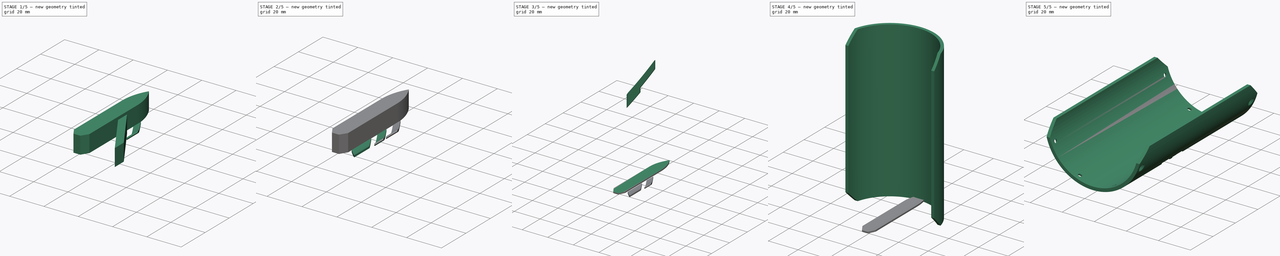
[diagram: build sequence overview — one tinted view per stage of 5, left to right]
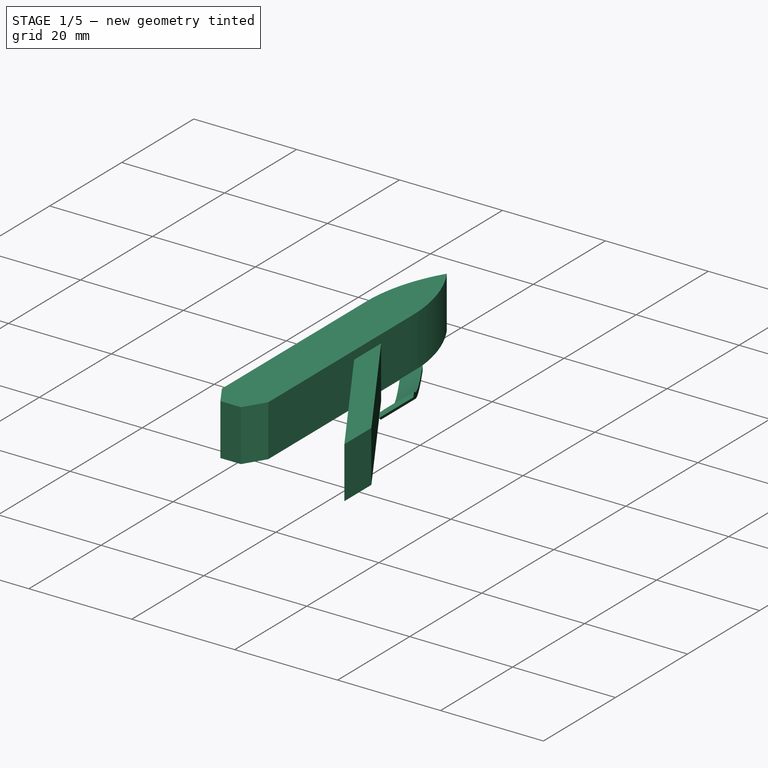
[diagram: stage 1 of 5 — iso view after this stage's code; geometry added in this stage tinted green]
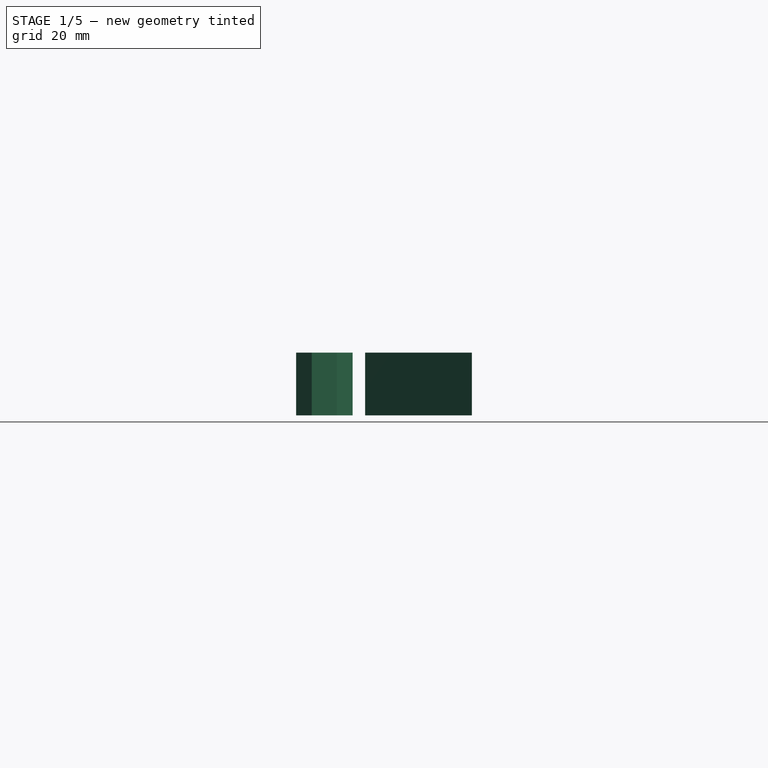
[diagram: stage 1 of 5 — front view after this stage's code; geometry added in this stage tinted green]
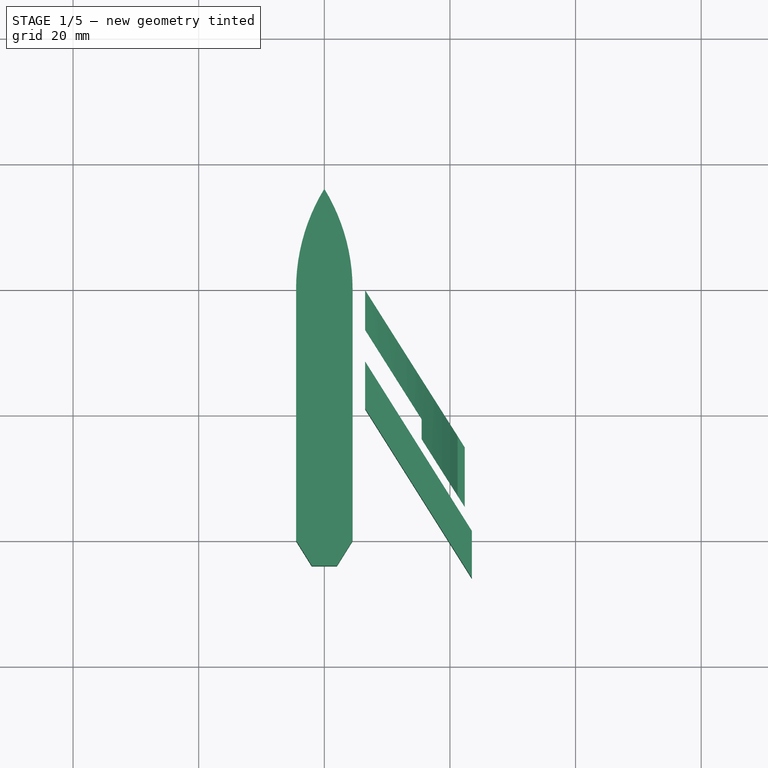
[diagram: stage 1 of 5 — top view after this stage's code; geometry added in this stage tinted green]
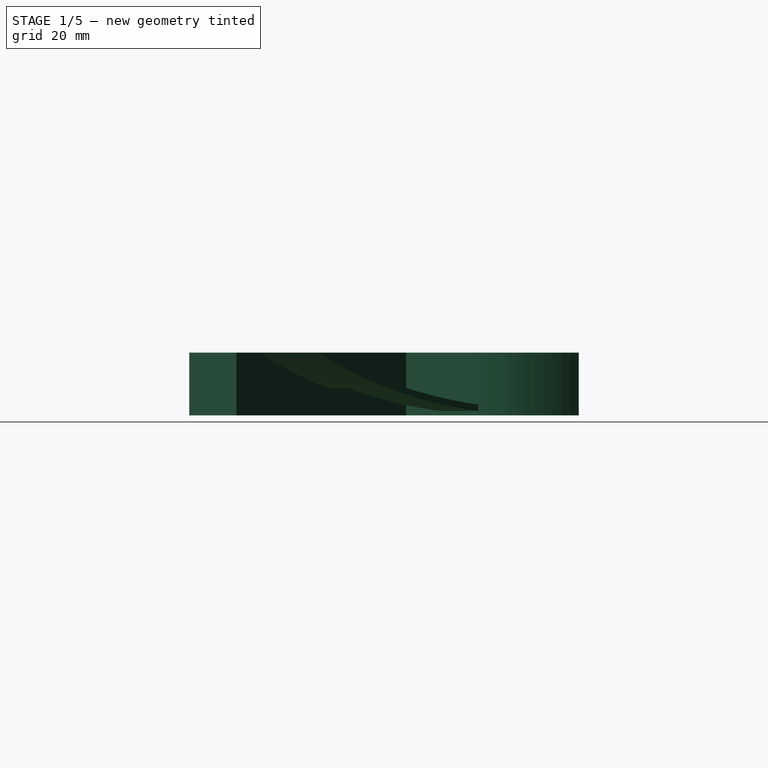
[diagram: stage 1 of 5 — right view after this stage's code; geometry added in this stage tinted green]
FCSTD DOCUMENT  (FreeCAD 1.0R39319 (Git))
Label: fuselage_w_logo
License: All rights reserved
objects: Sketcher::SketchObject×18, PartDesign::Pocket×11, PartDesign::Body×8, PartDesign::Plane×7, PartDesign::Pad×5, PartDesign::FeatureBase×3, Part::Mirroring×3, PartDesign::PolarPattern×1, PartDesign::Chamfer×1, PartDesign::Boolean×1
note: 115 computed .brp shape members not serialized (recipe doc carries the construction recipe); baked Part::Feature solids carry a one-line shape summary decoded from their .brp

FEATURE [Sketcher::SketchObject] Sketch005
  ArcFitTolerance = 1e-06
  AttachmentSupport = -> [XY_Plane001]
  FullyConstrained = true
  MakeInternals = false
  MapMode = 5
  sketch-geometry (11):
    g0: LineSegment StartX=-4.5 StartY=20 StartZ=0 EndX=-4.5 EndY=-20 EndZ=0
    g1: LineSegment StartX=4.5 StartY=-20 StartZ=0 EndX=4.5 EndY=20 EndZ=0
    g2: LineSegment [constr] StartX=-4.5 StartY=20 StartZ=0 EndX=4.5 EndY=-20 EndZ=0
    g3: LineSegment [constr] StartX=4.5 StartY=20 StartZ=0 EndX=-4.5 EndY=-20 EndZ=0
    g4: GeomPoint [constr] X=0 Y=0 Z=0
    g5: GeomPoint [constr] X=0 Y=36 Z=0
    g6: ArcOfCircle CenterX=26.1944 CenterY=20 CenterZ=0 NormalX=0 NormalY=0 NormalZ=1 AngleXU=0 Radius=30.6944 StartAngle=2.59326 EndAngle=3.14159
    g7: ArcOfCircle CenterX=-26.1944 CenterY=20 CenterZ=0 NormalX=0 NormalY=0 NormalZ=1 AngleXU=0 Radius=30.6944 StartAngle=0 EndAngle=0.548335
    g8: LineSegment StartX=-4.5 StartY=-20 StartZ=0 EndX=-2 EndY=-24 EndZ=0
    g9: LineSegment StartX=-2 StartY=-24 StartZ=0 EndX=2 EndY=-24 EndZ=0
    g10: LineSegment StartX=2 StartY=-24 StartZ=0 EndX=4.5 EndY=-20 EndZ=0
  constraints (24):
    c: Vertical(g0)
    c: DistanceX(g0,g1) = 9
    c: DistanceY(g1,g1) = 40
    c: Coincident(g2,g0)
    c: Coincident(g3,g1)
    c: Coincident(g3,g0)
    c: PointOnObject(g4,g2)
    c: Coincident(g4,g-1)
    c: PointOnObject(g5,g-2)
    c: DistanceY(g1,g5) = 16
    c: Coincident(g6,g5)
    c: Coincident(g7,g5)
    c: Tangent(g6,g0) = -1.5708
    c: Tangent(g7,g1) = -1.5708
    c: Symmetric(g1,g0,g-2)
    c: Coincident(g0,g8)
    c: Coincident(g8,g9)
    c: Coincident(g9,g10)
    c: DistanceY(g8,g0) = 4
    c: Symmetric(g8,g9,g-2)
    c: DistanceX(g8,g9) = 4
    c: Coincident(g10,g1)
    c: Symmetric(g1,g0,g-2)
    c: Coincident(g2,g1)
FEATURE [PartDesign::Pad] Pad001
  Direction = (0,0,1)
  Length = 10
  Length2 = 10
  Profile = -> Sketch005
  ReferenceAxis = -> Sketch005 [N_Axis]
  Refine = true
  Suppressed = false
  Type = 0
FEATURE [PartDesign::Plane] DatumPlane004
  AttachmentSupport = -> [Pad002]
  Length = 60
  MapMode = 7
  Placement = pos=(6.5,-4,0) rot=(1,0,0;1.5708rad)
  ResizeMode = 0
  Width = 60
FEATURE [Sketcher::SketchObject] Sketch007
  ArcFitTolerance = 1e-06
  AttachmentSupport = -> [XY_Plane003]
  FullyConstrained = true
  MakeInternals = false
  MapMode = 5
  sketch-geometry (4):
    g0: LineSegment StartX=6.5 StartY=1 StartZ=0 EndX=6.5 EndY=8.5 EndZ=0
    g1: LineSegment StartX=6.5 StartY=8.5 StartZ=0 EndX=23.5 EndY=-18.5 EndZ=0
    g2: LineSegment StartX=23.5 StartY=-18.5 StartZ=0 EndX=23.5 EndY=-26 EndZ=0
    g3: LineSegment StartX=23.5 StartY=-26 StartZ=0 EndX=6.5 EndY=1 EndZ=0
  constraints (12):
    c: Coincident(g0,g1)
    c: Coincident(g1,g2)
    c: Coincident(g2,g3)
    c: Coincident(g3,g0)
    c: Vertical(g0)
    c: Vertical(g2)
    c: Parallel(g1,g3)
    c: DistanceX(g0,g1) = 17
    c: DistanceY(g2,g1) = 7.5
    c: DistanceX(g-1,g0) = 6.5
    c: DistanceY(g-1,g0) = 1
    c: DistanceY(g2,g0) = 34.5
FEATURE [PartDesign::Pad] Pad003
  Direction = (0,0,1)
  Length = 10
  Length2 = 10
  Profile = -> Sketch007
  ReferenceAxis = -> Sketch007 [N_Axis]
  Refine = true
  Suppressed = false
  Type = 0
FEATURE [PartDesign::Plane] DatumPlane005
  AttachmentSupport = -> [Pad003]
  Length = 60
  MapMode = 7
  Placement = pos=(6.5,8.5,0) rot=(1,0,0;1.5708rad)
  ResizeMode = 0
  Width = 60
FEATURE [Sketcher::SketchObject] Sketch008
  ArcFitTolerance = 1e-06
  AttachmentSupport = -> [XY_Plane004]
  FullyConstrained = true
  MakeInternals = false
  MapMode = 5
  sketch-geometry (7):
    g0: LineSegment StartX=6.5 StartY=13.665 StartZ=0 EndX=6.5 EndY=19.995 EndZ=0
    g1: LineSegment StartX=6.5 StartY=19.995 StartZ=0 EndX=23.5 EndY=-7.005 EndZ=0
    g2: LineSegment StartX=23.5 StartY=-7.005 StartZ=0 EndX=23.5 EndY=-16.5 EndZ=0
    g3: LineSegment StartX=23.5 StartY=-16.5 StartZ=0 EndX=15.5 EndY=-3.79412 EndZ=0
    g4: LineSegment StartX=15.5 StartY=-3.79412 StartZ=0 EndX=15.5 EndY=-0.629118 EndZ=0
    g5: LineSegment StartX=15.5 StartY=-0.629118 StartZ=0 EndX=6.5 EndY=13.665 EndZ=0
    g6: LineSegment [constr] StartX=23.5 StartY=-18.5 StartZ=0 EndX=6.5 EndY=8.5 EndZ=0
  constraints (22):
    c: Coincident(g0,g1)
    c: Coincident(g1,g2)
    c: Coincident(g2,g3)
    c: Coincident(g3,g4)
    c: Coincident(g4,g5)
    c: Coincident(g5,g0)
    c: Vertical(g0)
    c: Vertical(g2)
    c: Vertical(g4)
    c: DistanceY(g0,g0) = 6.33
    c: DistanceY(g2,g1) = 9.495
    c: DistanceX(g-1,g0) = 6.5
    c: DistanceX(g0,g1) = 17
    c: Parallel(g5,g1)
    c: Parallel(g3,g1)
    c: DistanceY(g6,g-1) = 18.5
    c: DistanceX(g-1,g6) = 6.5
    c: DistanceX(g-1,g6) = 23.5
    c: DistanceY(g-1,g6) = 8.5
    c: Parallel(g3,g6)
    c: DistanceY(g6,g2) = 2
    c: DistanceX(g-1,g3) = 15.5
FEATURE [PartDesign::Pad] Pad004
  Direction = (0,0,1)
  Length = 10
  Length2 = 10
  Profile = -> Sketch008
  ReferenceAxis = -> Sketch008 [N_Axis]
  Refine = true
  Suppressed = false
  Type = 0
FEATURE [Sketcher::SketchObject] Sketch016
  ArcFitTolerance = 1e-06
  AttachmentSupport = -> [DatumPlane006]
  FullyConstrained = false
  MakeInternals = false
  MapMode = 5
  Placement = pos=(6.5,19.995,0) rot=(1,0,0;1.5708rad)
  sketch-geometry (2):
    g0: Circle CenterX=-6.5 CenterY=30 CenterZ=0 NormalX=0 NormalY=0 NormalZ=1 AngleXU=0 Radius=30
    g1: Circle CenterX=-6.5 CenterY=30 CenterZ=0 NormalX=0 NormalY=0 NormalZ=1 AngleXU=0 Radius=39.2924
  constraints (4):
    c: Diameter(g0) = 60
    c: Tangent(g0,g-1)
    c: DistanceX(g0,g-1) = 6.5
    c: Coincident(g1,g0)
FEATURE [PartDesign::Pocket] Pocket009
  BaseFeature = -> Pad004
  Direction = (0,1,-2e-16)
  Length = 5
  Length2 = 5
  Profile = -> Sketch016
  ReferenceAxis = -> Sketch016 [N_Axis]
  Refine = true
  Reversed = true
  Suppressed = false
  Type = 1
FEATURE [Sketcher::SketchObject] Sketch017
  ArcFitTolerance = 1e-06
  AttachmentSupport = -> [DatumPlane006]
  FullyConstrained = true
  MakeInternals = false
  MapMode = 5
  Placement = pos=(6.5,19.995,0) rot=(1,0,0;1.5708rad)
  sketch-geometry (2):
    g0: Circle CenterX=-6.5 CenterY=30.5 CenterZ=0 NormalX=0 NormalY=0 NormalZ=1 AngleXU=0 Radius=29.5
    g1: LineSegment [constr] StartX=-6.5 StartY=30.5 StartZ=0 EndX=-6.5 EndY=1 EndZ=0
  constraints (6):
    c: Diameter(g0) = 59
    c: Coincident(g1,g0)
    c: PointOnObject(g1,g0)
    c: Vertical(g1)
    c: DistanceX(g0,g-1) = 6.5
    c: DistanceY(g-1,g1) = 1
FEATURE [PartDesign::Pocket] Pocket010
  BaseFeature = -> Pocket009
  Direction = (0,1,-2e-16)
  Length = 5
  Length2 = 5
  Profile = -> Sketch017
  ReferenceAxis = -> Sketch017 [N_Axis]
  Refine = true
  Reversed = true
  Suppressed = false
  Type = 1
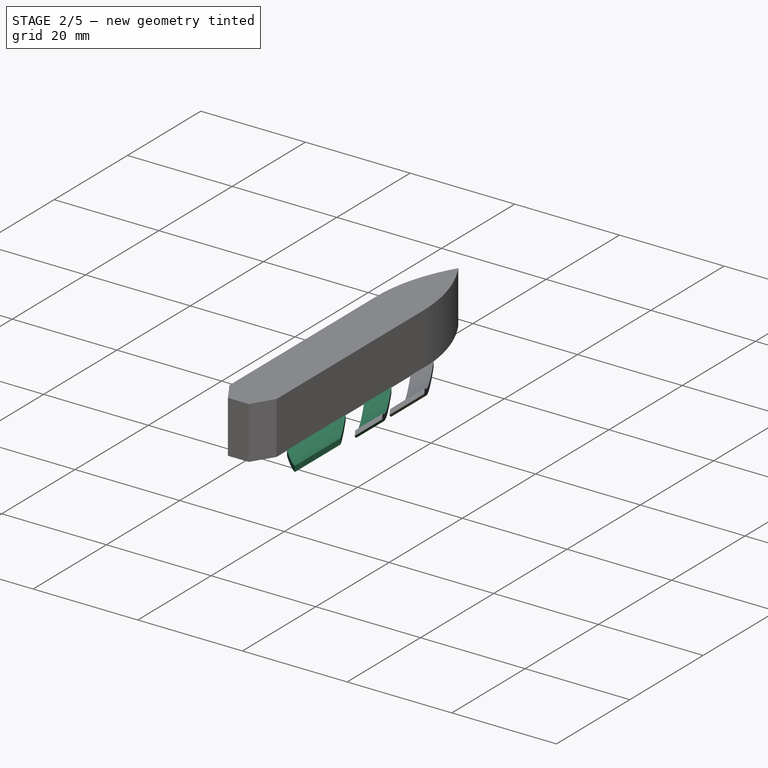
[diagram: stage 2 of 5 — iso view after this stage's code; geometry added in this stage tinted green]
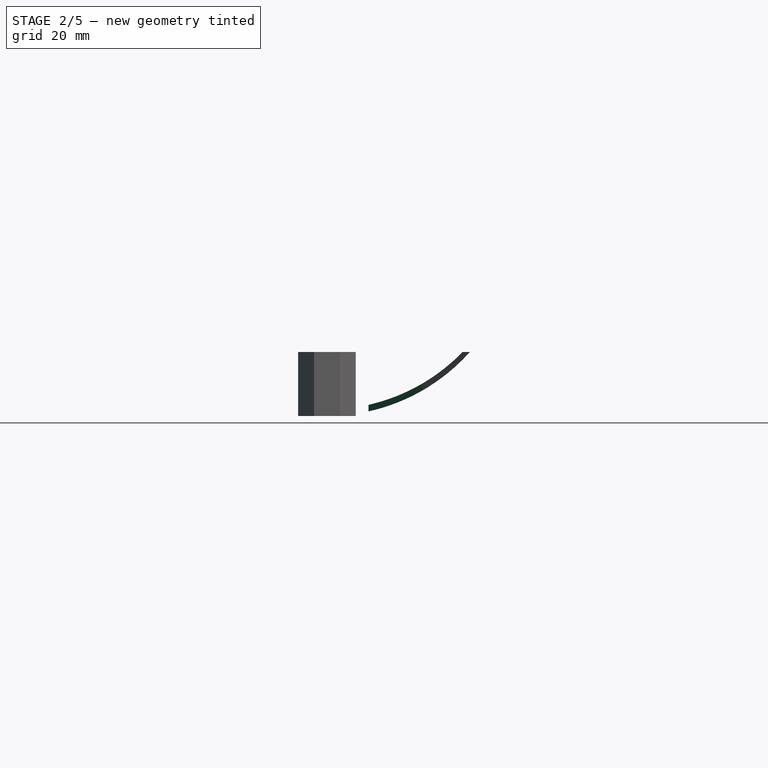
[diagram: stage 2 of 5 — front view after this stage's code; geometry added in this stage tinted green]
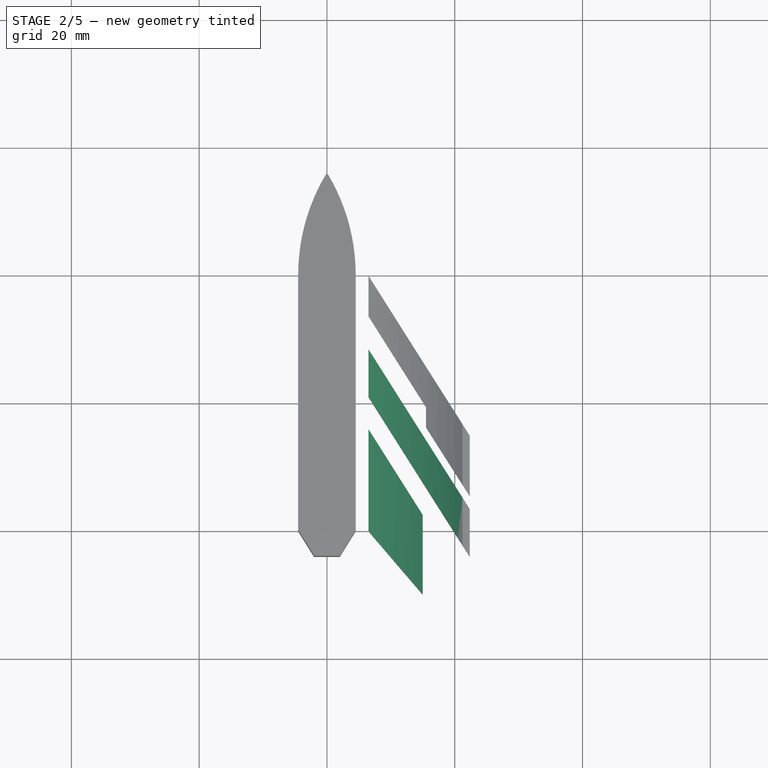
[diagram: stage 2 of 5 — top view after this stage's code; geometry added in this stage tinted green]
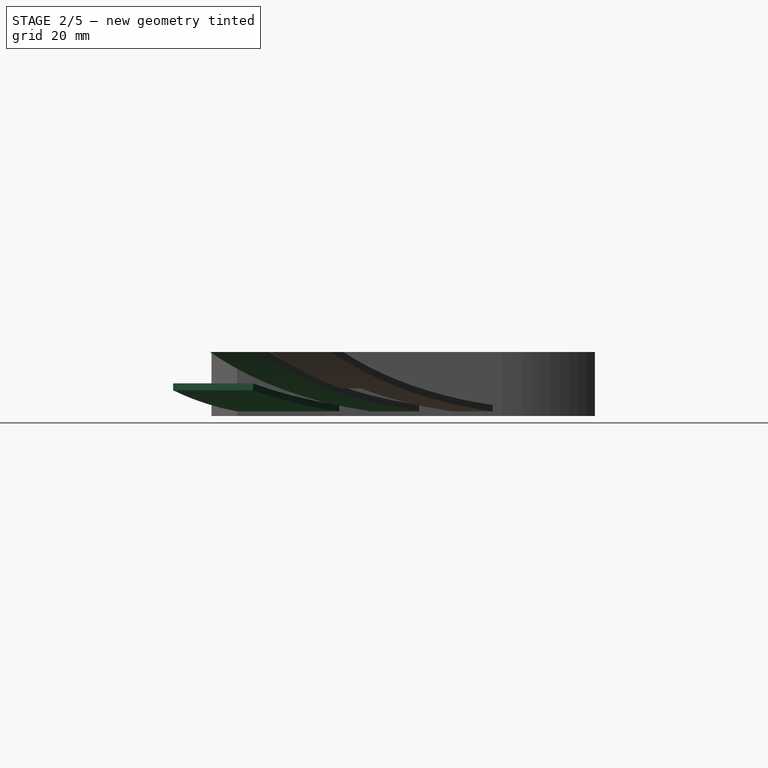
[diagram: stage 2 of 5 — right view after this stage's code; geometry added in this stage tinted green]
FEATURE [Sketcher::SketchObject] Sketch006
  ArcFitTolerance = 1e-06
  AttachmentSupport = -> [XY_Plane002]
  FullyConstrained = true
  MakeInternals = false
  MapMode = 5
  sketch-geometry (4):
    g0: LineSegment StartX=6.5 StartY=-20 StartZ=0 EndX=6.5 EndY=-4 EndZ=0
    g1: LineSegment StartX=6.5 StartY=-4 StartZ=0 EndX=15 EndY=-17.5 EndZ=0
    g2: LineSegment StartX=15 StartY=-17.5 StartZ=0 EndX=15 EndY=-30 EndZ=0
    g3: LineSegment StartX=15 StartY=-30 StartZ=0 EndX=6.5 EndY=-20 EndZ=0
  constraints (12):
    c: Coincident(g0,g1)
    c: Coincident(g1,g2)
    c: Coincident(g2,g3)
    c: Coincident(g3,g0)
    c: DistanceX(g-1,g0) = 6.5
    c: Vertical(g0)
    c: Vertical(g2)
    c: DistanceX(g0,g1) = 8.5
    c: DistanceY(g2,g1) = 12.5
    c: Distance(g0,g0) = 16
    c: DistanceY(g2,g0) = 10
    c: DistanceY(g0,g-1) = 20
FEATURE [PartDesign::Pad] Pad002
  Direction = (0,0,1)
  Length = 10
  Length2 = 10
  Profile = -> Sketch006
  ReferenceAxis = -> Sketch006 [N_Axis]
  Refine = true
  Suppressed = false
  Type = 0
FEATURE [PartDesign::Body] Body001  label="main_body"
  AllowCompound = false
  Group = -> [Sketch005,Pad001,Sketch009,DatumPlane003,Sketch010,Pocket003,Sketch011,Pocket004]
  Origin = -> Origin001
  Placement = pos=(0,30,52.5) rot=(1,0,0;1.5708rad)
  Tip = -> Pocket004
FEATURE [Sketcher::SketchObject] Sketch012
  ArcFitTolerance = 1e-06
  AttachmentSupport = -> [DatumPlane004]
  FullyConstrained = false
  MakeInternals = false
  MapMode = 5
  Placement = pos=(6.5,-4,0) rot=(1,0,0;1.5708rad)
  sketch-geometry (2):
    g0: Circle CenterX=-6.5 CenterY=30 CenterZ=0 NormalX=0 NormalY=0 NormalZ=1 AngleXU=0 Radius=30
    g1: Circle CenterX=-6.5 CenterY=30 CenterZ=0 NormalX=0 NormalY=0 NormalZ=1 AngleXU=0 Radius=41.3921
  constraints (4):
    c: Diameter(g0) = 60
    c: Tangent(g0,g-1)
    c: DistanceX(g0,g-1) = 6.5
    c: Coincident(g1,g0)
FEATURE [PartDesign::Pocket] Pocket005
  BaseFeature = -> Pad002
  Direction = (0,1,-2e-16)
  Length = 5
  Length2 = 5
  Profile = -> Sketch012
  ReferenceAxis = -> Sketch012 [N_Axis]
  Refine = true
  Reversed = true
  Suppressed = false
  Type = 1
FEATURE [Sketcher::SketchObject] Sketch013
  ArcFitTolerance = 1e-06
  AttachmentSupport = -> [DatumPlane004]
  FullyConstrained = true
  MakeInternals = false
  MapMode = 5
  Placement = pos=(6.5,-4,0) rot=(1,0,0;1.5708rad)
  sketch-geometry (3):
    g0: Circle CenterX=-6.5 CenterY=30.5 CenterZ=0 NormalX=0 NormalY=0 NormalZ=1 AngleXU=0 Radius=29.5
    g1: LineSegment [constr] StartX=-6.5 StartY=30.5 StartZ=0 EndX=-6.5 EndY=1 EndZ=0
    g2: GeomPoint [constr] X=-6.5 Y=1 Z=0
  constraints (8):
    c: Diameter(g0) = 59
    c: DistanceX(g0,g-1) = 6.5
    c: Coincident(g1,g0)
    c: PointOnObject(g1,g0)
    c: Vertical(g1)
    c: PointOnObject(g2,g0)
    c: PointOnObject(g2,g1)
    c: DistanceY(g-1,g1) = 1
FEATURE [PartDesign::Pocket] Pocket006
  BaseFeature = -> Pocket005
  Direction = (0,1,-2e-16)
  Length = 5
  Length2 = 5
  Profile = -> Sketch013
  ReferenceAxis = -> Sketch013 [N_Axis]
  Refine = true
  Reversed = true
  Suppressed = false
  Type = 1
FEATURE [Sketcher::SketchObject] Sketch014
  ArcFitTolerance = 1e-06
  AttachmentSupport = -> [DatumPlane005]
  FullyConstrained = false
  MakeInternals = false
  MapMode = 5
  Placement = pos=(6.5,8.5,0) rot=(1,0,0;1.5708rad)
  sketch-geometry (2):
    g0: Circle CenterX=-6.5 CenterY=30 CenterZ=0 NormalX=0 NormalY=0 NormalZ=1 AngleXU=0 Radius=30
    g1: Circle CenterX=-6.5 CenterY=30 CenterZ=0 NormalX=0 NormalY=0 NormalZ=1 AngleXU=0 Radius=40.2472
  constraints (4):
    c: Diameter(g0) = 60
    c: Tangent(g0,g-1)
    c: DistanceX(g0,g-1) = 6.5
    c: Coincident(g1,g0)
FEATURE [PartDesign::Pocket] Pocket007
  BaseFeature = -> Pad003
  Direction = (0,1,-2e-16)
  Length = 5
  Length2 = 5
  Profile = -> Sketch014
  ReferenceAxis = -> Sketch014 [N_Axis]
  Refine = true
  Reversed = true
  Suppressed = false
  Type = 1
FEATURE [Sketcher::SketchObject] Sketch015
  ArcFitTolerance = 1e-06
  AttachmentSupport = -> [DatumPlane005]
  FullyConstrained = true
  MakeInternals = false
  MapMode = 5
  Placement = pos=(6.5,8.5,0) rot=(1,0,0;1.5708rad)
  sketch-geometry (2):
    g0: Circle CenterX=-6.5 CenterY=30.5 CenterZ=0 NormalX=0 NormalY=0 NormalZ=1 AngleXU=0 Radius=29.5
    g1: LineSegment [constr] StartX=-6.5 StartY=30.5 StartZ=0 EndX=-6.5 EndY=1 EndZ=0
  constraints (6):
    c: Diameter(g0) = 59
    c: DistanceX(g0,g-1) = 6.5
    c: Coincident(g1,g0)
    c: PointOnObject(g1,g0)
    c: Vertical(g1)
    c: DistanceY(g-1,g1) = 1
FEATURE [PartDesign::Pocket] Pocket008
  BaseFeature = -> Pocket007
  Direction = (0,1,-2e-16)
  Length = 5
  Length2 = 5
  Profile = -> Sketch015
  ReferenceAxis = -> Sketch015 [N_Axis]
  Refine = true
  Reversed = true
  Suppressed = false
  Type = 1
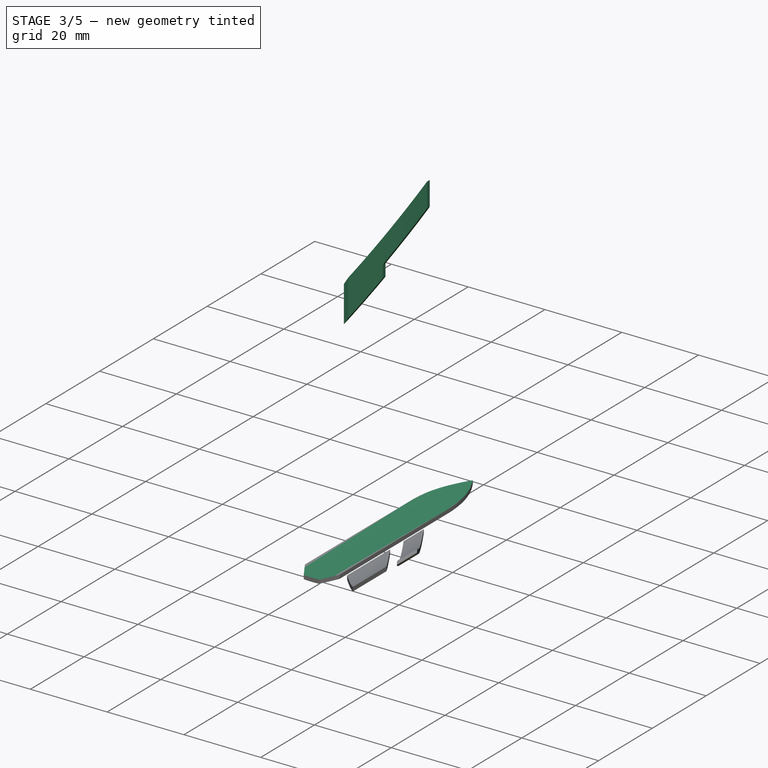
[diagram: stage 3 of 5 — iso view after this stage's code; geometry added in this stage tinted green]
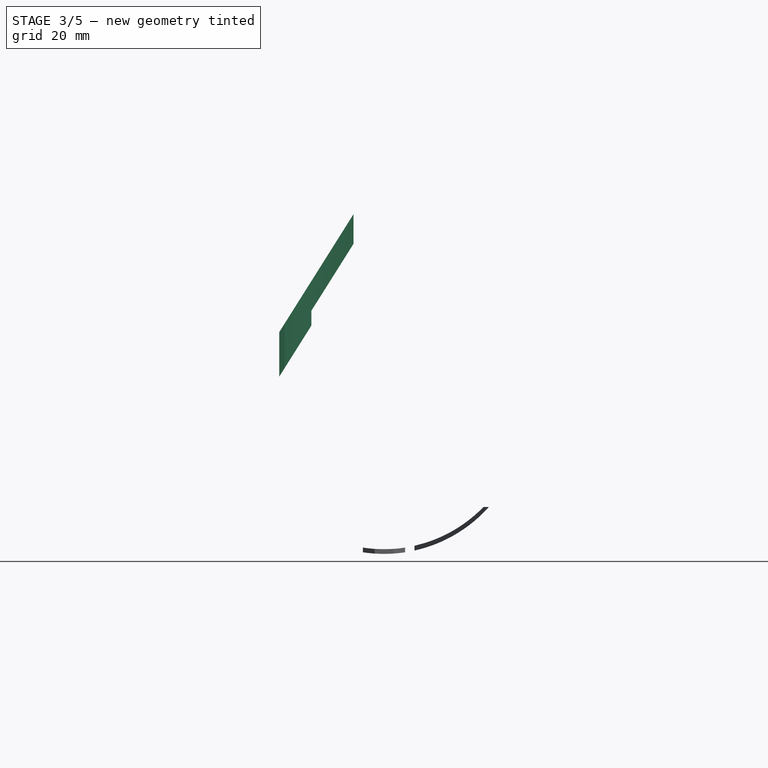
[diagram: stage 3 of 5 — front view after this stage's code; geometry added in this stage tinted green]
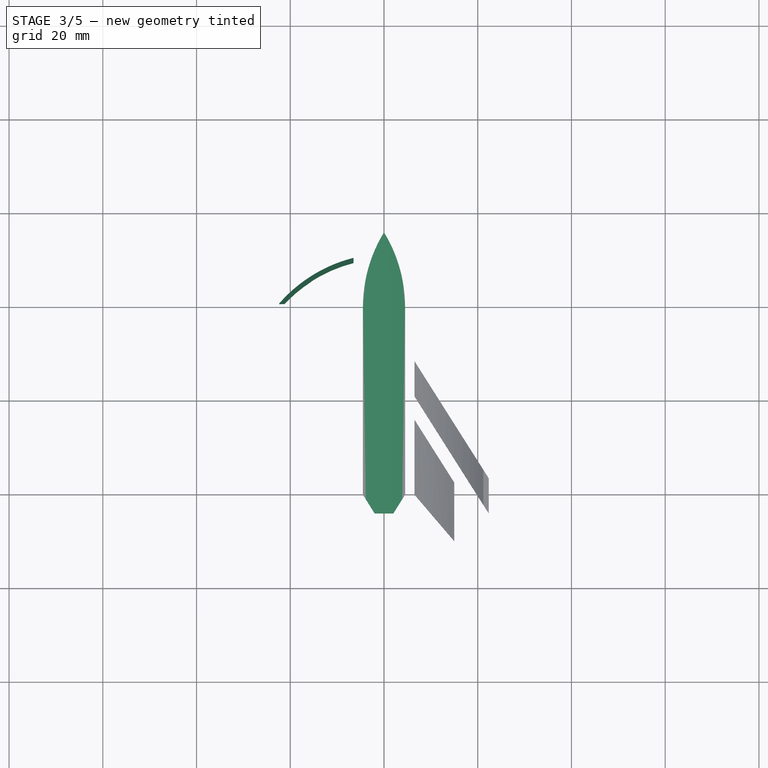
[diagram: stage 3 of 5 — top view after this stage's code; geometry added in this stage tinted green]
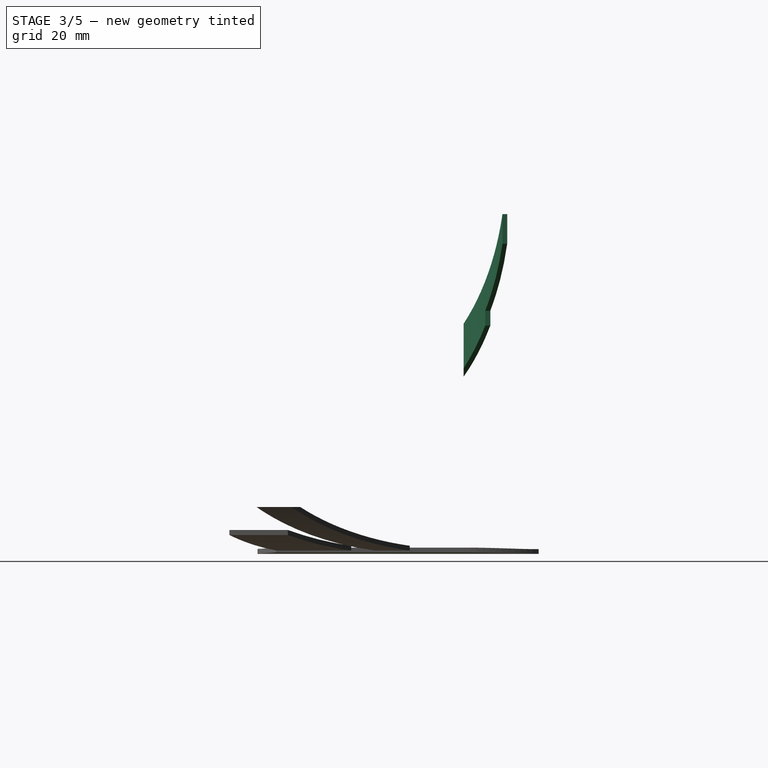
[diagram: stage 3 of 5 — right view after this stage's code; geometry added in this stage tinted green]
FEATURE [PartDesign::Plane] DatumPlane006
  AttachmentSupport = -> [Pad004]
  Length = 60
  MapMode = 7
  Placement = pos=(6.5,19.995,0) rot=(1,0,0;1.5708rad)
  ResizeMode = 0
  Width = 60
FEATURE [Sketcher::SketchObject] Sketch009
  ArcFitTolerance = 1e-06
  AttachmentSupport = -> [Pad001]
  ExternalGeometry = -> [Pad001]
  FullyConstrained = true
  MakeInternals = false
  MapMode = 5
  Placement = pos=(0,0,0) rot=(1,0,0;3.14159rad)
  sketch-geometry (1):
    g0: LineSegment StartX=0 StartY=-36 StartZ=0 EndX=0 EndY=0 EndZ=0
  constraints (2):
    c: Coincident(g0,g-4)
    c: Coincident(g0,g-1)
FEATURE [PartDesign::Plane] DatumPlane003
  AttachmentSupport = -> [Sketch009]
  Length = 60
  MapMode = 7
  Placement = pos=(0,36,0) rot=(0,0.707107,0.707107;3.14159rad)
  ResizeMode = 0
  Width = 60
FEATURE [Sketcher::SketchObject] Sketch010
  ArcFitTolerance = 1e-06
  AttachmentSupport = -> [DatumPlane003]
  FullyConstrained = false
  MakeInternals = false
  MapMode = 5
  Placement = pos=(0,36,0) rot=(0,0.707107,0.707107;3.14159rad)
  sketch-geometry (2):
    g0: Circle CenterX=0 CenterY=30 CenterZ=0 NormalX=0 NormalY=0 NormalZ=1 AngleXU=0 Radius=30
    g1: Circle CenterX=0 CenterY=30 CenterZ=0 NormalX=0 NormalY=0 NormalZ=1 AngleXU=0 Radius=39.8202
  constraints (4):
    c: Diameter(g0) = 60
    c: PointOnObject(g0,g-2)
    c: Coincident(g1,g0)
    c: Tangent(g0,g-1)
FEATURE [PartDesign::Pocket] Pocket003
  BaseFeature = -> Pad001
  Direction = (0,-1,2e-16)
  Length = 5
  Length2 = 5
  Profile = -> Sketch010
  ReferenceAxis = -> Sketch010 [N_Axis]
  Refine = true
  Suppressed = false
  Type = 1
FEATURE [Sketcher::SketchObject] Sketch011
  ArcFitTolerance = 1e-06
  AttachmentSupport = -> [DatumPlane003]
  FullyConstrained = true
  MakeInternals = false
  MapMode = 5
  Placement = pos=(0,36,0) rot=(0,0.707107,0.707107;3.14159rad)
  sketch-geometry (2):
    g0: Circle CenterX=0 CenterY=30.5 CenterZ=0 NormalX=0 NormalY=0 NormalZ=1 AngleXU=0 Radius=29.5
    g1: GeomPoint X=0 Y=1 Z=0
  constraints (5):
    c: Diameter(g0) = 59
    c: PointOnObject(g0,g-2)
    c: PointOnObject(g1,g0)
    c: PointOnObject(g1,g-2)
    c: DistanceY(g-1,g1) = 1
FEATURE [PartDesign::Pocket] Pocket004
  BaseFeature = -> Pocket003
  Direction = (0,-1,2e-16)
  Length = 5
  Length2 = 5
  Profile = -> Sketch011
  ReferenceAxis = -> Sketch011 [N_Axis]
  Refine = true
  Suppressed = false
  Type = 1
FEATURE [PartDesign::Body] Body003  label="mid_right_wing"
  AllowCompound = false
  Group = -> [Sketch007,Pad003,DatumPlane005,Sketch014,Pocket007,Sketch015,Pocket008]
  Origin = -> Origin003
  Placement = pos=(0,30,52.5) rot=(1,0,0;1.5708rad)
  Tip = -> Pocket008
FEATURE [PartDesign::FeatureBase] Clone001
  BaseFeature = -> Body003
  Suppressed = false
FEATURE [PartDesign::Body] Body004  label="upper_right_wing"
  AllowCompound = false
  Group = -> [Sketch008,Pad004,DatumPlane006,Sketch016,Pocket009,Sketch017,Pocket010]
  Origin = -> Origin004
  Placement = pos=(0,30,52.5) rot=(1,0,0;1.5708rad)
  Tip = -> Pocket010
FEATURE [PartDesign::FeatureBase] Clone002
  BaseFeature = -> Body004
  Suppressed = false
FEATURE [PartDesign::Body] Body007
  AllowCompound = false
  Group = -> [Clone002]
  Origin = -> Origin007
  Tip = -> Clone002
FEATURE [Part::Mirroring] Part__Mirroring002  label="upper_left_wing"
  Base = (0,0,0)
  Normal = (1,0,0)
  Placement = pos=(0,30,52.5) rot=(1,0,0;1.5708rad)
  Source = -> Body007
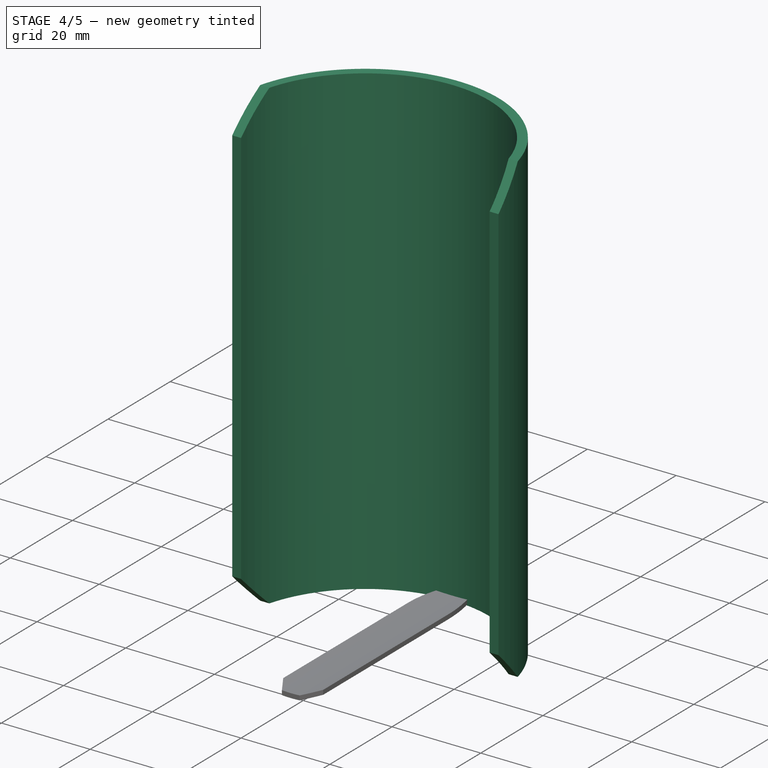
[diagram: stage 4 of 5 — iso view after this stage's code; geometry added in this stage tinted green]
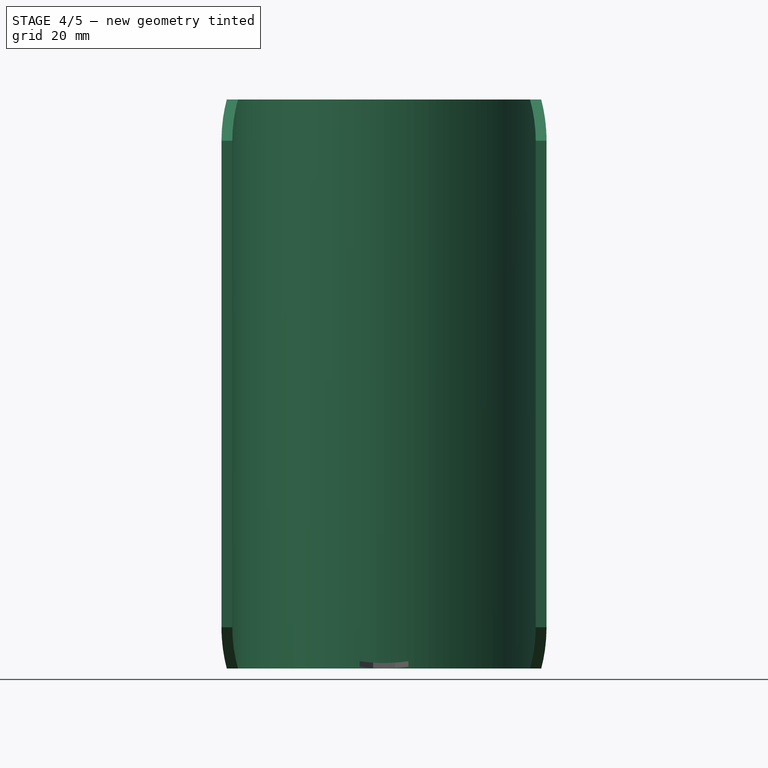
[diagram: stage 4 of 5 — front view after this stage's code; geometry added in this stage tinted green]
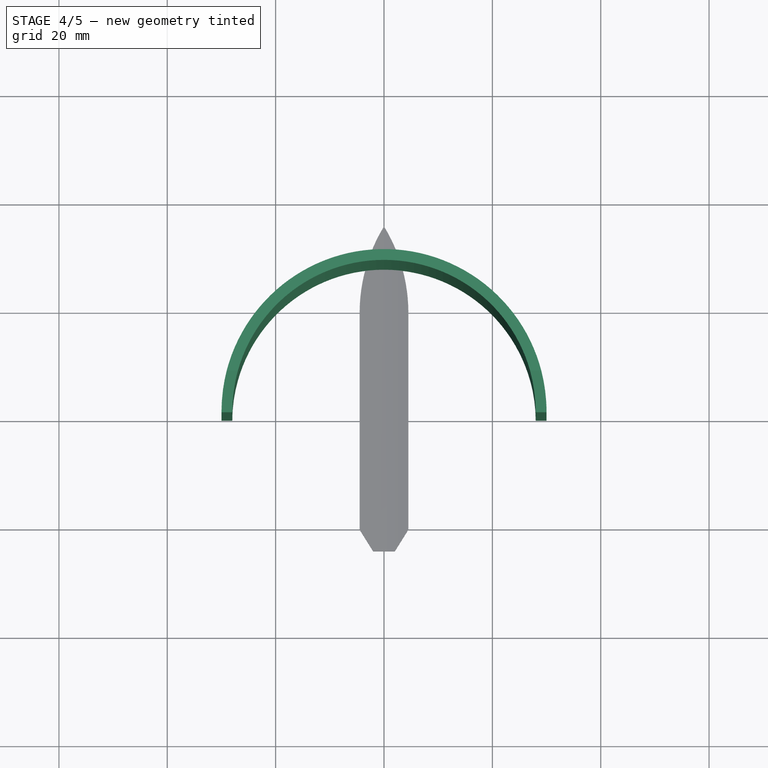
[diagram: stage 4 of 5 — top view after this stage's code; geometry added in this stage tinted green]
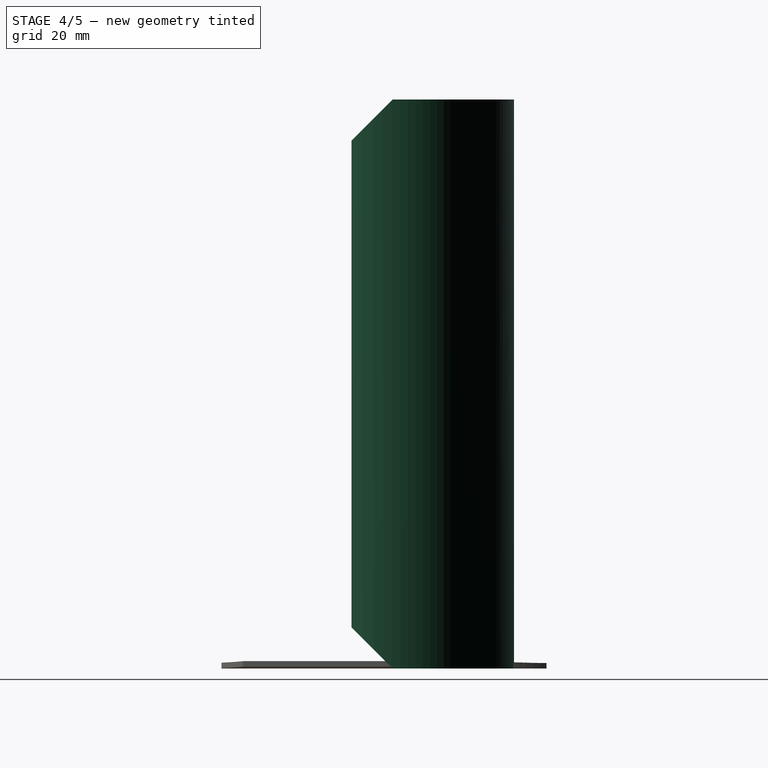
[diagram: stage 4 of 5 — right view after this stage's code; geometry added in this stage tinted green]
FEATURE [Sketcher::SketchObject] Sketch
  ArcFitTolerance = 1e-06
  AttachmentSupport = -> [XY_Plane]
  FullyConstrained = false
  MakeInternals = false
  MapMode = 5
  sketch-geometry (4):
    g0: ArcOfCircle CenterX=0 CenterY=0 CenterZ=0 NormalX=0 NormalY=0 NormalZ=1 AngleXU=0 Radius=30 StartAngle=0 EndAngle=3.14159
    g1: ArcOfCircle CenterX=0 CenterY=0 CenterZ=0 NormalX=0 NormalY=0 NormalZ=1 AngleXU=0 Radius=28 StartAngle=0 EndAngle=3.14159
    g2: LineSegment StartX=-30 StartY=3.7e-15 StartZ=0 EndX=-28 EndY=3.4e-15 EndZ=0
    g3: LineSegment StartX=28 StartY=0 StartZ=0 EndX=30 EndY=0 EndZ=0
  constraints (8):
    c: Diameter(g0) = 60
    c: Coincident(g0,g-1)
    c: Diameter(g1) = 56
    c: Coincident(g1,g0)
    c: Coincident(g0,g2)
    c: Coincident(g0,g3)
    c: Coincident(g1,g2)
    c: Coincident(g1,g3)
FEATURE [PartDesign::Pad] Pad
  Direction = (0,0,1)
  Length = 105
  Length2 = 10
  Profile = -> Sketch
  ReferenceAxis = -> Sketch [N_Axis]
  Refine = true
  Suppressed = false
  Type = 0
FEATURE [PartDesign::Plane] DatumPlane
  AttachmentSupport = -> [Pad]
  Length = 120.199
  MapMode = 7
  Placement = pos=(30,0,0) rot=(0.57735,-0.57735,-0.57735;2.0944rad)
  ResizeMode = 0
  Width = 70.1987
FEATURE [Sketcher::SketchObject] Sketch001
  ArcFitTolerance = 1e-06
  AttachmentSupport = -> [DatumPlane]
  ExternalGeometry = -> [Pad]
  FullyConstrained = true
  MakeInternals = false
  MapMode = 5
  Placement = pos=(30,0,0) rot=(0.57735,-0.57735,-0.57735;2.0944rad)
  sketch-geometry (6):
    g0: LineSegment StartX=0 StartY=0 StartZ=0 EndX=-7.6 EndY=0 EndZ=0
    g1: LineSegment StartX=-7.6 StartY=0 StartZ=0 EndX=-4e-15 EndY=7.6 EndZ=0
    g2: LineSegment StartX=-4e-15 StartY=7.6 StartZ=0 EndX=0 EndY=0 EndZ=0
    g3: LineSegment StartX=-3.7e-15 StartY=97.4 StartZ=0 EndX=-7.6 EndY=105 EndZ=0
    g4: LineSegment StartX=-7.6 StartY=105 StartZ=0 EndX=0 EndY=105 EndZ=0
    g5: LineSegment StartX=0 StartY=105 StartZ=0 EndX=-3.7e-15 EndY=97.4 EndZ=0
  constraints (16):
    c: Coincident(g0,g-1)
    c: PointOnObject(g0,g-3)
    c: Coincident(g0,g1)
    c: PointOnObject(g1,g-4)
    c: Coincident(g1,g2)
    c: Coincident(g2,g0)
    c: DistanceX(g0,g-1) = 7.6
    c: DistanceY(g-1,g1) = 7.6
    c: PointOnObject(g3,g-4)
    c: PointOnObject(g3,g-5)
    c: Coincident(g3,g4)
    c: Coincident(g4,g5)
    c: Coincident(g5,g3)
    c: Coincident(g4,g-5)
    c: DistanceX(g3,g4) = 7.6
    c: DistanceY(g3,g4) = 7.6
FEATURE [PartDesign::Pocket] Pocket
  BaseFeature = -> Pad
  Direction = (1,0,0)
  Length = 5
  Length2 = 5
  Profile = -> Sketch001
  ReferenceAxis = -> Sketch001 [N_Axis]
  Refine = true
  Reversed = true
  Suppressed = false
  Type = 1
FEATURE [PartDesign::Body] Body002  label="lower_right_wing"
  AllowCompound = false
  Group = -> [Sketch006,Pad002,DatumPlane004,Sketch012,Pocket005,Sketch013,Pocket006]
  Origin = -> Origin002
  Placement = pos=(0,30,52.5) rot=(1,0,0;1.5708rad)
  Tip = -> Pocket006
FEATURE [PartDesign::FeatureBase] Clone
  BaseFeature = -> Body002
  Suppressed = false
FEATURE [PartDesign::Body] Body005
  AllowCompound = false
  Group = -> [Clone]
  Origin = -> Origin005
  Tip = -> Clone
FEATURE [Part::Mirroring] Part__Mirroring  label="lower_left_wing"
  Base = (0,0,0)
  Normal = (1,0,0)
  Placement = pos=(0,30,52.5) rot=(1,0,0;1.5708rad)
  Source = -> Body005
FEATURE [PartDesign::Body] Body006
  AllowCompound = false
  Group = -> [Clone001]
  Origin = -> Origin006
  Tip = -> Clone001
FEATURE [Part::Mirroring] Part__Mirroring001  label="mid_left_wing"
  Base = (0,0,0)
  Normal = (1,0,0)
  Placement = pos=(0,30,52.5) rot=(1,0,0;1.5708rad)
  Source = -> Body006
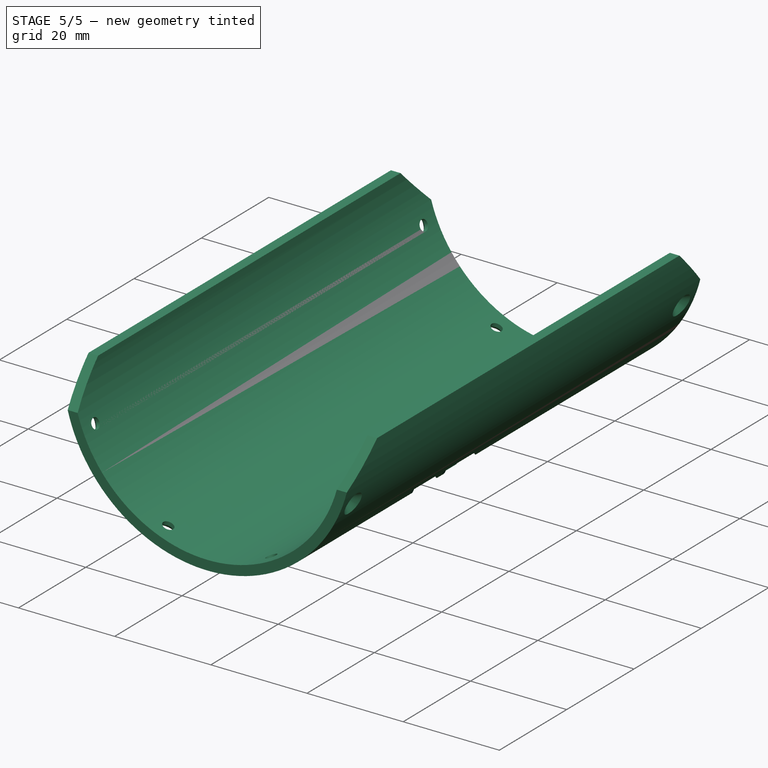
[diagram: stage 5 of 5 — iso view after this stage's code; geometry added in this stage tinted green]
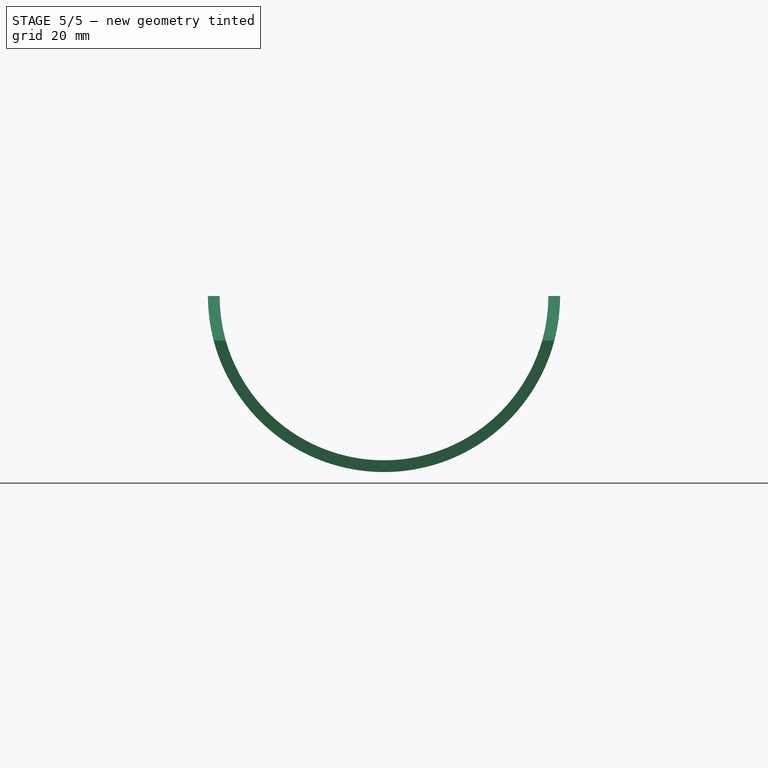
[diagram: stage 5 of 5 — front view after this stage's code; geometry added in this stage tinted green]
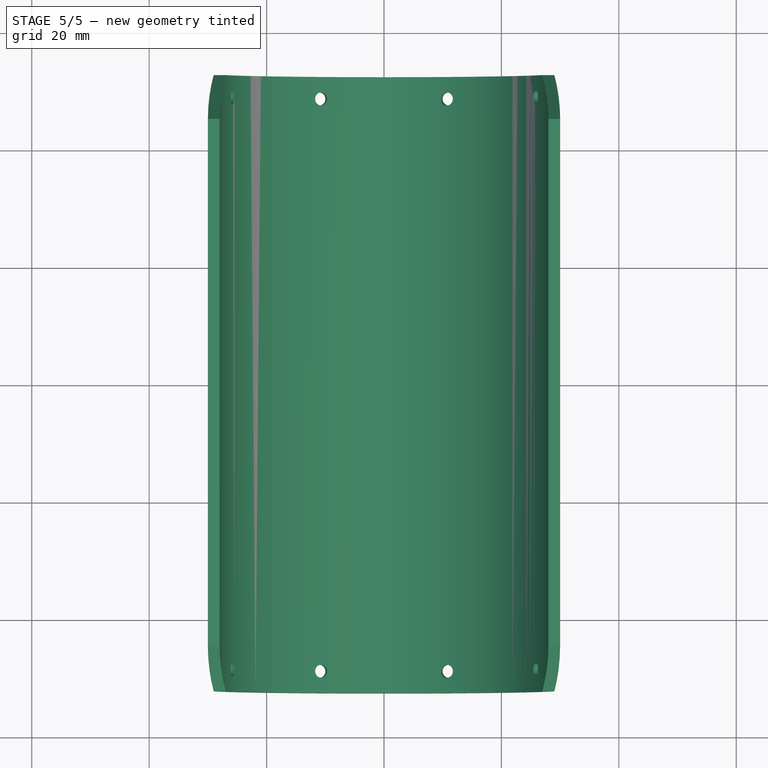
[diagram: stage 5 of 5 — top view after this stage's code; geometry added in this stage tinted green]
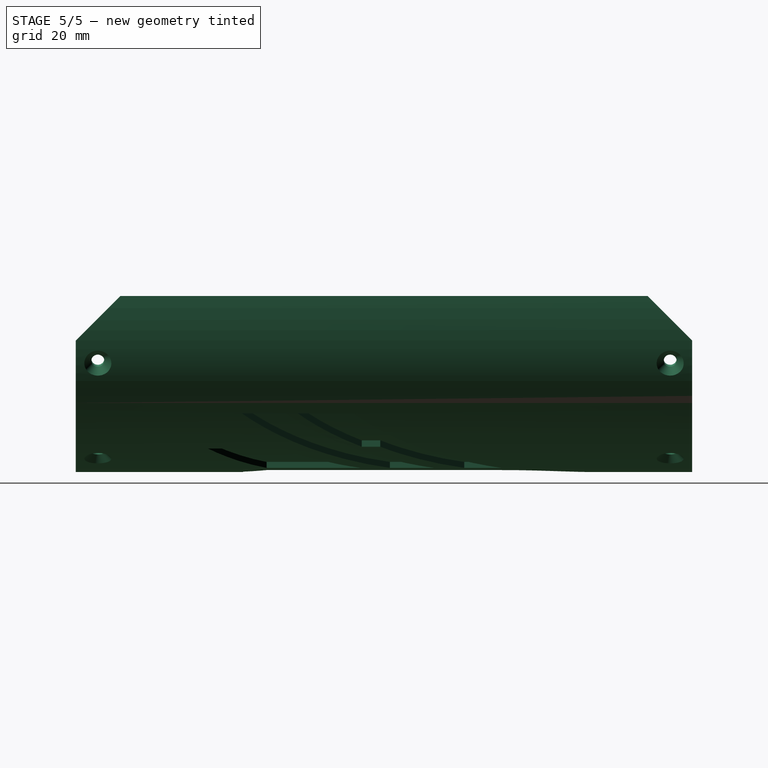
[diagram: stage 5 of 5 — right view after this stage's code; geometry added in this stage tinted green]
FEATURE [Sketcher::SketchObject] Sketch002
  ArcFitTolerance = 1e-06
  AttachmentSupport = -> [Pocket]
  ExternalGeometry = -> [Pocket]
  FullyConstrained = true
  MakeInternals = false
  MapMode = 5
  Placement = pos=(0,0,0) rot=(1,0,0;3.14159rad)
  sketch-geometry (3):
    g0: LineSegment [constr] StartX=0 StartY=0 StartZ=0 EndX=21.2132 EndY=-21.2132 EndZ=0
    g1: LineSegment StartX=0 StartY=0 StartZ=0 EndX=27.7164 EndY=-11.4805 EndZ=0
    g2: LineSegment StartX=0 StartY=0 StartZ=0 EndX=11.4805 EndY=-27.7164 EndZ=0
  constraints (9):
    c: Coincident(g0,g-1)
    c: PointOnObject(g0,g-3)
    c: Coincident(g1,g0)
    c: PointOnObject(g1,g-3)
    c: Coincident(g2,g0)
    c: PointOnObject(g2,g-3)
    c: Angle(g0,g-1) = 0.785398
    c: Angle(g2,g1) = 0.785398
    c: Angle(g2,g0) = 0.392699
FEATURE [PartDesign::Plane] DatumPlane001
  AttachmentSupport = -> [Sketch002]
  Length = 136.214
  MapMode = 7
  Placement = pos=(27.7164,11.4805,0) rot=(0.726831,-0.485653,-0.485653;1.88458rad)
  ResizeMode = 0
  Width = 71.2459
FEATURE [PartDesign::Plane] DatumPlane002
  AttachmentSupport = -> [Sketch002]
  Length = 110.118
  MapMode = 7
  Placement = pos=(11.4805,27.7164,0) rot=(0.962637,-0.19148,-0.19148;1.60887rad)
  ResizeMode = 0
  Width = 69.5035
FEATURE [Sketcher::SketchObject] Sketch003
  ArcFitTolerance = 1e-06
  AttachmentSupport = -> [DatumPlane001]
  ExternalGeometry = -> [Pocket,Sketch002]
  FullyConstrained = true
  MakeInternals = false
  MapMode = 5
  Placement = pos=(27.7164,11.4805,0) rot=(0.726831,-0.485653,-0.485653;1.88458rad)
  sketch-geometry (2):
    g0: Circle CenterX=0 CenterY=3.75 CenterZ=0 NormalX=0 NormalY=0 NormalZ=1 AngleXU=0 Radius=1.1
    g1: Circle CenterX=0 CenterY=101.25 CenterZ=0 NormalX=0 NormalY=0 NormalZ=1 AngleXU=0 Radius=1.1
  constraints (6):
    c: Diameter(g0) = 2.2
    c: PointOnObject(g0,g-2)
    c: Diameter(g1) = 2.2
    c: PointOnObject(g1,g-2)
    c: DistanceY(g1,g-3) = 3.75
    c: DistanceY(g-1,g0) = 3.75
FEATURE [Sketcher::SketchObject] Sketch004
  ArcFitTolerance = 1e-06
  AttachmentSupport = -> [DatumPlane002]
  ExternalGeometry = -> [Pocket]
  FullyConstrained = true
  MakeInternals = false
  MapMode = 5
  Placement = pos=(11.4805,27.7164,0) rot=(0.962637,-0.19148,-0.19148;1.60887rad)
  sketch-geometry (2):
    g0: Circle CenterX=0 CenterY=101.25 CenterZ=0 NormalX=0 NormalY=0 NormalZ=1 AngleXU=0 Radius=1.1
    g1: Circle CenterX=0 CenterY=3.75 CenterZ=0 NormalX=0 NormalY=0 NormalZ=1 AngleXU=0 Radius=1.1
  constraints (6):
    c: Diameter(g0) = 2.2
    c: PointOnObject(g0,g-2)
    c: Diameter(g1) = 2.2
    c: PointOnObject(g1,g-2)
    c: DistanceY(g0,g-3) = 3.75
    c: DistanceY(g-1,g1) = 3.75
FEATURE [PartDesign::Pocket] Pocket001  label="sede_viti_1"
  BaseFeature = -> Pocket
  Direction = (0.92388,0.382683,2e-16)
  Length = 3
  Length2 = 5
  Profile = -> Sketch003
  ReferenceAxis = -> Sketch003 [N_Axis]
  Refine = true
  Reversed = true
  Suppressed = false
  Type = 0
FEATURE [PartDesign::Pocket] Pocket002  label="sede_viti_2"
  BaseFeature = -> Pocket001
  Direction = (0.382683,0.92388,-2e-16)
  Length = 3
  Length2 = 5
  Profile = -> Sketch004
  ReferenceAxis = -> Sketch004 [N_Axis]
  Refine = true
  Reversed = true
  Suppressed = false
  Type = 0
FEATURE [PartDesign::PolarPattern] PolarPattern
  Angle = 360
  Axis = -> Z_Axis
  BaseFeature = -> Pocket002
  Mode = 0
  Occurrences = 4
  Offset = 120
  Originals = -> [Pocket001,Pocket002]
  Refine = true
  Suppressed = false
  TransformMode = 0
FEATURE [PartDesign::Chamfer] Chamfer
  Angle = 45
  Base = -> PolarPattern [Edge36,Edge37,Edge35,Edge33,Edge34,Edge32,Edge30,Edge31,Edge29,Edge24,Edge25,Edge23,Edge22,Edge21,Edge20,Edge19,Edge18,Edge17,Edge15,Edge16,Edge14,Edge27,Edge26,Edge28]
  BaseFeature = -> PolarPattern
  ChamferType = 0
  FlipDirection = false
  Refine = true
  Size = 1.2
  Size2 = 1
  SupportTransform = false
  Suppressed = false
  UseAllEdges = false
FEATURE [PartDesign::Boolean] Boolean
  BaseFeature = -> Chamfer
  Group = -> [Body001,Body002,Body003,Body004,Part__Mirroring,Body005,Part__Mirroring001,Body006,Part__Mirroring002,Body007]
  Placement = pos=(4.189e-13,-52.5,30) rot=(-1,0,0;1.5708rad)
  Refine = true
  Suppressed = false
  Type = 1
  UsePlacement = true
FEATURE [PartDesign::Body] Body
  AllowCompound = false
  Group = -> [Sketch,Pad,DatumPlane,Sketch001,Pocket,Sketch002,DatumPlane001,DatumPlane002,Sketch003,Sketch004,Pocket001,Pocket002,PolarPattern,Chamfer,Boolean]
  Origin = -> Origin
  Tip = -> Boolean
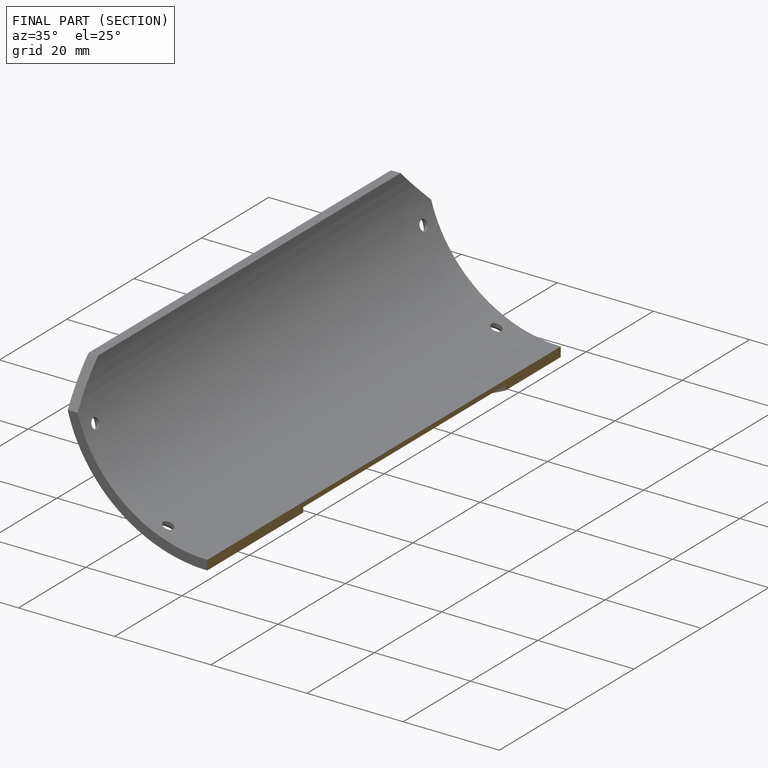
[diagram: finished part — half-section view (interior)]
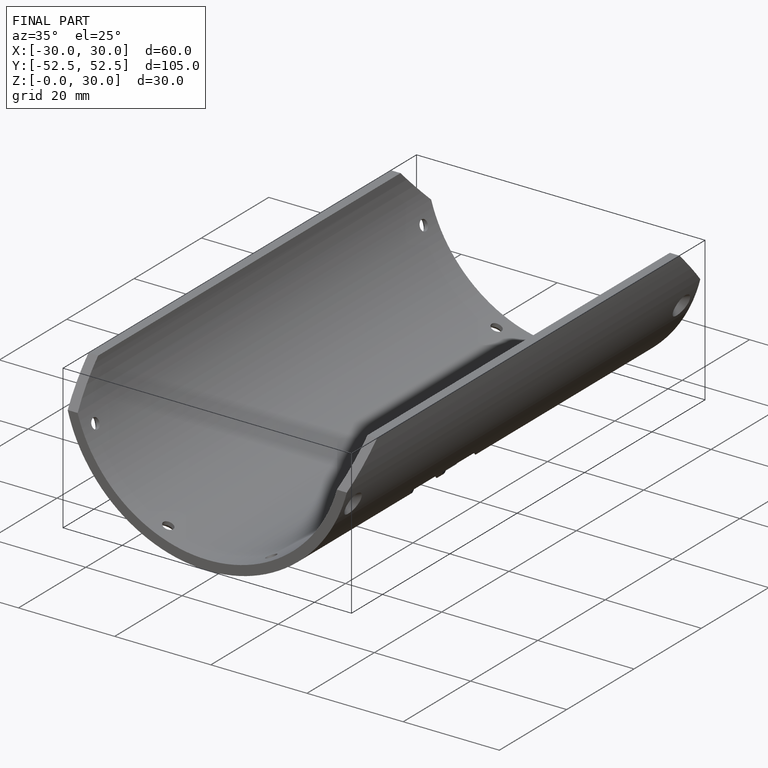
[diagram: finished part — iso view with bounding-box wireframe]
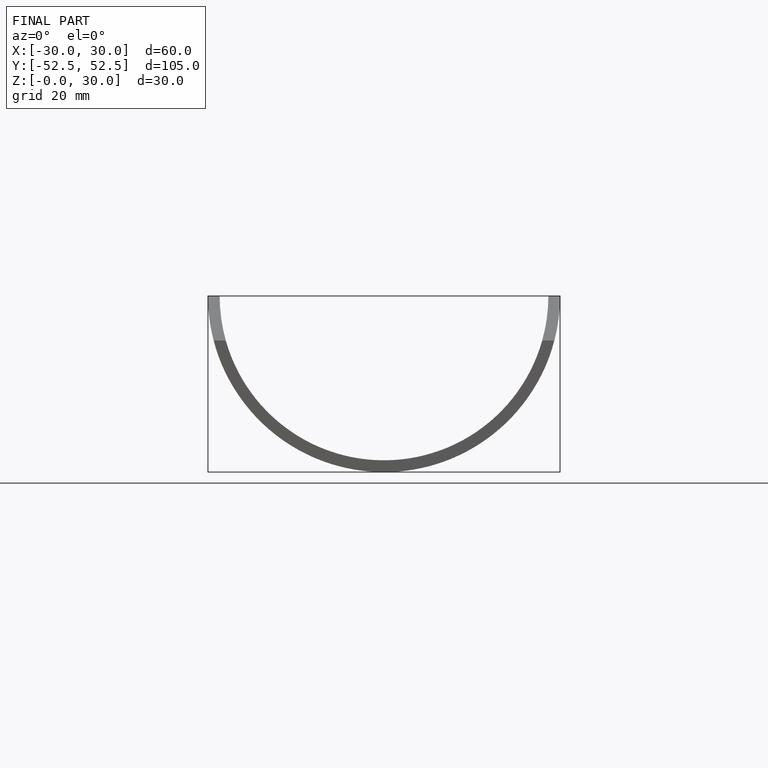
[diagram: finished part — front view with bounding-box wireframe]
